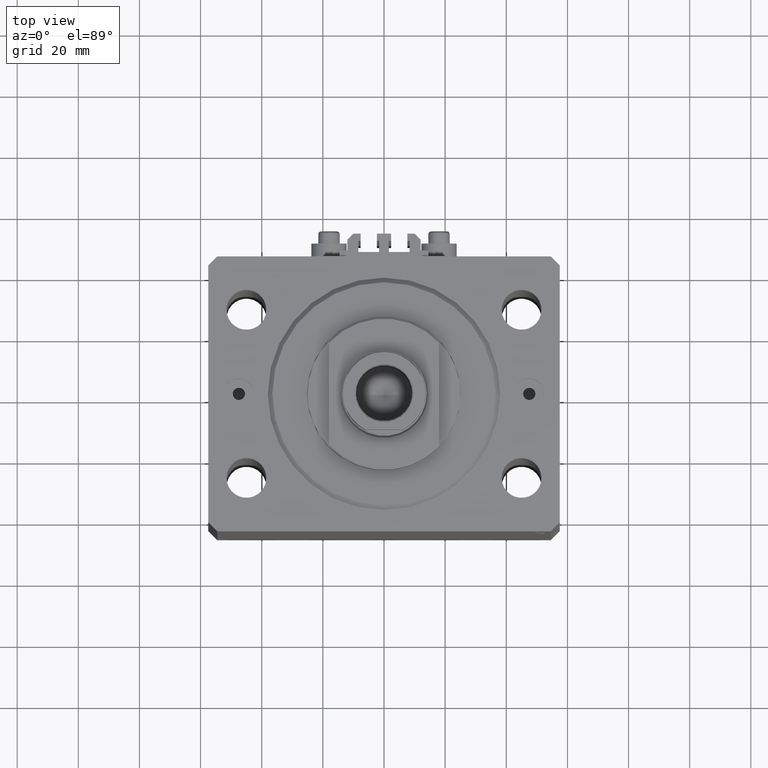
[diagram: clean part render]
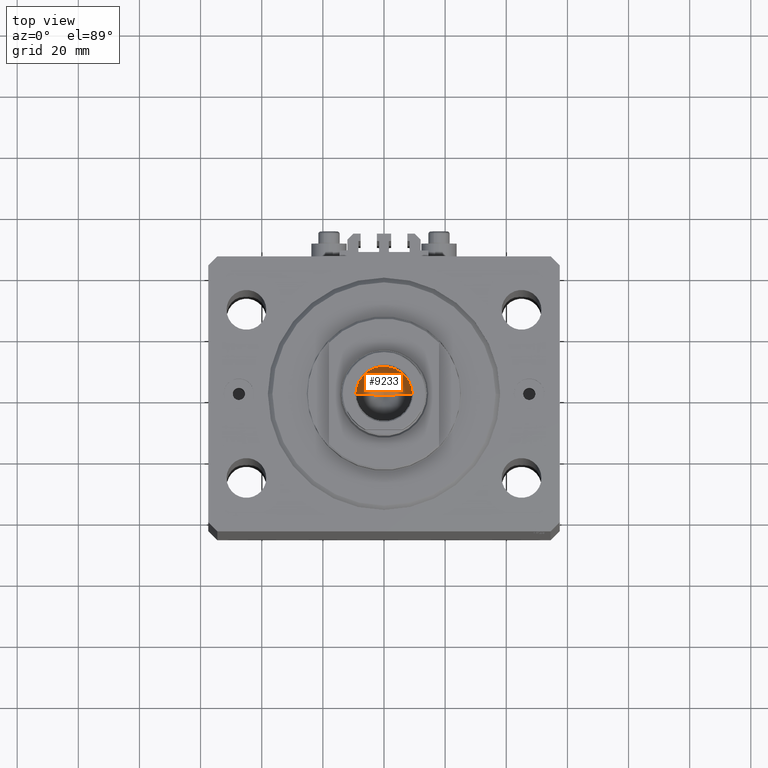
[diagram: same view with one face highlighted and labeled with its STEP entity id]
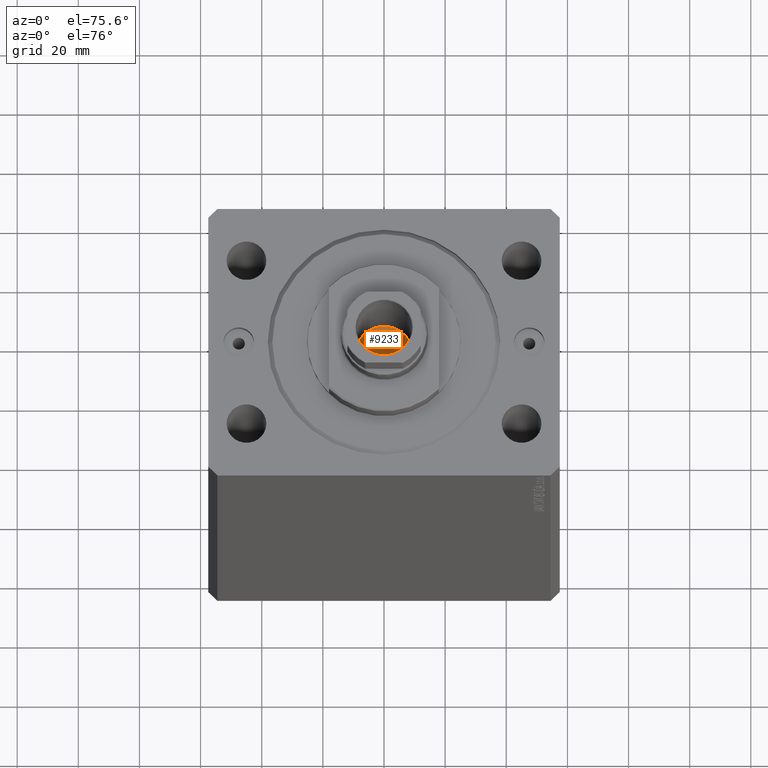
[diagram: same view with one face highlighted and labeled with its STEP entity id]
A machine part, top view. The second image highlights one B-rep face of the part: STEP entity #9233.
A second angle (auxiliary view) of the same face is appended — the face is thin or edge-on in the first view.
In plain terms, the highlighted conical surface has half-angle 59 deg.
Its self-contained STEP definition (entity closure, byte-faithful):
#949 = FACE_OUTER_BOUND ( 'NONE', #16597, .T. ) ;
#2166 = VECTOR ( 'NONE', #2424, 1000.000000000000114 ) ;
#2424 = DIRECTION ( 'NONE',  ( -0.8571673007021122226, 1.049727191138618696E-16, 0.5150380749100541555 ) ) ;
#4545 = DIRECTION ( 'NONE',  ( 1.000000000000000000, 0.000000000000000000, 0.000000000000000000 ) ) ;
#4579 = EDGE_CURVE ( 'NONE', #42643, #6899, #42635, .T. ) ;
#4869 = CARTESIAN_POINT ( 'NONE',  ( -1.046994375366439223E-14, 0.000000000000000000, 126.5420392739951012 ) ) ;
#6899 = VERTEX_POINT ( 'NONE', #37083 ) ;
#7018 = CARTESIAN_POINT ( 'NONE',  ( -9.249999999999994671, 1.132798289211300909E-15, 132.1000000000000227 ) ) ;
#9233 = ADVANCED_FACE ( 'NONE', ( #949 ), #9597, .F. ) ;
#9548 = AXIS2_PLACEMENT_3D ( 'NONE', #24450, #17050, #13473 ) ;
#9597 = CONICAL_SURFACE ( 'NONE', #45430, 9.249999999999994671, 1.029744258676654534 ) ;
#10399 = CARTESIAN_POINT ( 'NONE',  ( 9.249999999999994671, 0.000000000000000000, 132.1000000000000227 ) ) ;
#13473 = DIRECTION ( 'NONE',  ( 1.000000000000000000, 0.000000000000000000, 0.000000000000000000 ) ) ;
#16597 = EDGE_LOOP ( 'NONE', ( #20332, #18780, #31200 ) ) ;
#17050 = DIRECTION ( 'NONE',  ( -0.000000000000000000, -0.000000000000000000, 1.000000000000000000 ) ) ;
#18780 = ORIENTED_EDGE ( 'NONE', *, *, #4579, .T. ) ;
#20332 = ORIENTED_EDGE ( 'NONE', *, *, #24506, .F. ) ;
#22109 = EDGE_CURVE ( 'NONE', #6899, #38040, #37018, .T. ) ;
#24450 = CARTESIAN_POINT ( 'NONE',  ( 0.000000000000000000, 0.000000000000000000, 132.1000000000000227 ) ) ;
#24506 = EDGE_CURVE ( 'NONE', #42643, #38040, #42058, .T. ) ;
#26465 = DIRECTION ( 'NONE',  ( -0.000000000000000000, -0.000000000000000000, 1.000000000000000000 ) ) ;
#26992 = CARTESIAN_POINT ( 'NONE',  ( -9.249999999999994671, 1.132798289211300909E-15, 132.1000000000000227 ) ) ;
#31200 = ORIENTED_EDGE ( 'NONE', *, *, #22109, .T. ) ;
#34992 = DIRECTION ( 'NONE',  ( 0.8571673007021122226, 0.000000000000000000, 0.5150380749100541555 ) ) ;
#37018 = CIRCLE ( 'NONE', #9548, 9.249999999999994671 ) ;
#37083 = CARTESIAN_POINT ( 'NONE',  ( 9.249999999999994671, 0.000000000000000000, 132.1000000000000227 ) ) ;
#38040 = VERTEX_POINT ( 'NONE', #7018 ) ;
#41170 = VECTOR ( 'NONE', #34992, 1000.000000000000114 ) ;
#42058 = LINE ( 'NONE', #26992, #2166 ) ;
#42635 = LINE ( 'NONE', #10399, #41170 ) ;
#42643 = VERTEX_POINT ( 'NONE', #4869 ) ;
#45338 = CARTESIAN_POINT ( 'NONE',  ( 0.000000000000000000, 0.000000000000000000, 132.1000000000000227 ) ) ;
#45430 = AXIS2_PLACEMENT_3D ( 'NONE', #45338, #26465, #4545 ) ;